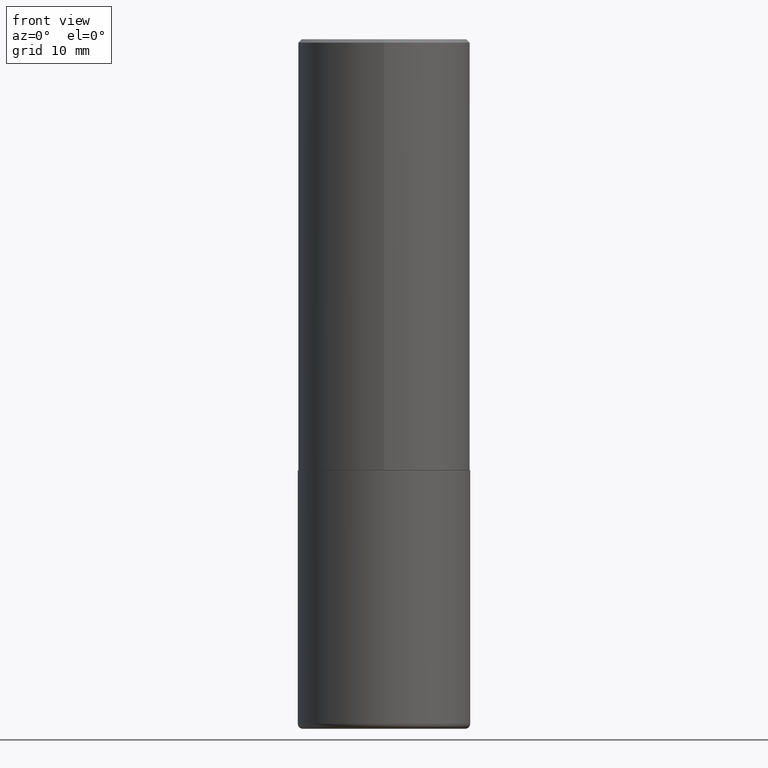
[diagram: clean part render]
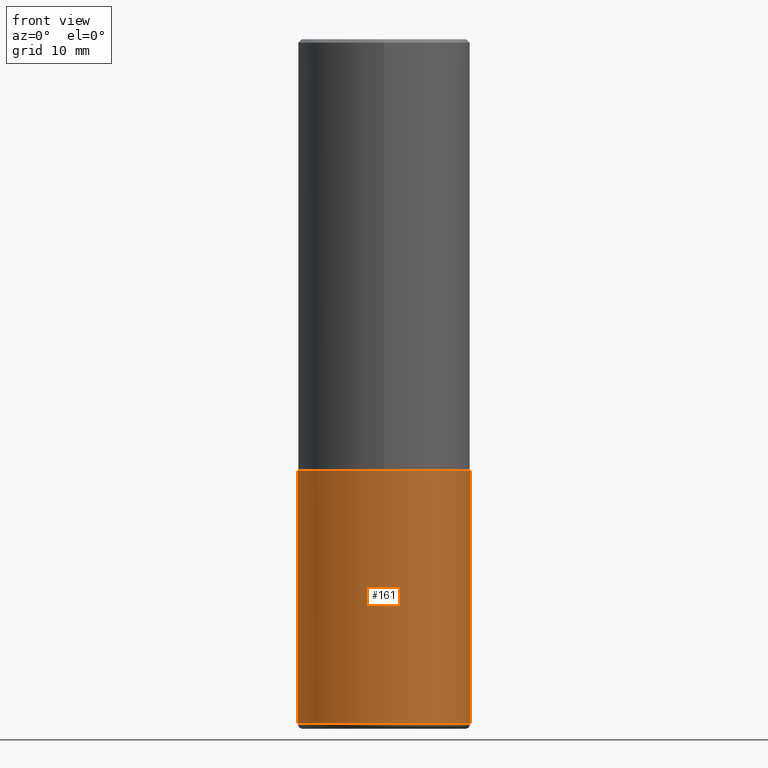
[diagram: same view with one face highlighted and labeled with its STEP entity id]
A machine part, front view. The second image highlights one B-rep face of the part: STEP entity #161.
In plain terms, the highlighted cylindrical surface (partial cylindrical patch) has radius 12.7 mm, axis along (-0, 0, 1).
Its self-contained STEP definition (entity closure, byte-faithful):
#6 = CARTESIAN_POINT ( 'NONE',  ( -0.4999999999999999445, -1.030846723640678645E-14, -3.970000000000000195 ) ) ;
#36 = EDGE_CURVE ( 'NONE', #320, #407, #138, .T. ) ;
#40 = CARTESIAN_POINT ( 'NONE',  ( 6.113672015462842613E-29, -8.728703347107864943E-15, -2.500000000000000000 ) ) ;
#47 = CARTESIAN_POINT ( 'NONE',  ( -0.5000000000000000000, 3.552713678800500929E-15, -2.459467545127452891E-29 ) ) ;
#50 = AXIS2_PLACEMENT_3D ( 'NONE', #78, #268, #394 ) ;
#51 = ORIENTED_EDGE ( 'NONE', *, *, #66, .T. ) ;
#58 = ORIENTED_EDGE ( 'NONE', *, *, #317, .F. ) ;
#66 = EDGE_CURVE ( 'NONE', #320, #156, #194, .T. ) ;
#67 = VECTOR ( 'NONE', #347, 39.37007874015748143 ) ;
#78 = CARTESIAN_POINT ( 'NONE',  ( 0.000000000000000000, 0.000000000000000000, 0.000000000000000000 ) ) ;
#107 = DIRECTION ( 'NONE',  ( -2.445468806185136597E-29, 3.491481338843145583E-15, 1.000000000000000000 ) ) ;
#134 = DIRECTION ( 'NONE',  ( 1.000000000000000000, -6.982962677686267499E-15, 0.000000000000000000 ) ) ;
#138 = LINE ( 'NONE', #47, #348 ) ;
#146 = CARTESIAN_POINT ( 'NONE',  ( 0.5000000000000000000, -1.222018468595099830E-14, -2.500000000000000000 ) ) ;
#151 = CARTESIAN_POINT ( 'NONE',  ( -0.5000000000000000000, -7.742228452357075234E-15, -2.500000000000000000 ) ) ;
#156 = VERTEX_POINT ( 'NONE', #327 ) ;
#161 = ADVANCED_FACE ( 'NONE', ( #204 ), #201, .T. ) ;
#165 = DIRECTION ( 'NONE',  ( 1.000000000000000000, -6.982962677686269077E-15, 0.000000000000000000 ) ) ;
#166 = DIRECTION ( 'NONE',  ( -2.445468806185136877E-29, 3.491481338843145188E-15, 1.000000000000000000 ) ) ;
#184 = AXIS2_PLACEMENT_3D ( 'NONE', #366, #396, #134 ) ;
#190 = CIRCLE ( 'NONE', #281, 0.5000000000000000000 ) ;
#194 = CIRCLE ( 'NONE', #184, 0.4999999999999999445 ) ;
#201 = CYLINDRICAL_SURFACE ( 'NONE', #50, 0.5000000000000000000 ) ;
#204 = FACE_OUTER_BOUND ( 'NONE', #212, .T. ) ;
#205 = ORIENTED_EDGE ( 'NONE', *, *, #36, .F. ) ;
#212 = EDGE_LOOP ( 'NONE', ( #205, #51, #283, #58 ) ) ;
#268 = DIRECTION ( 'NONE',  ( -2.445468806185136597E-29, 3.491481338843145583E-15, 1.000000000000000000 ) ) ;
#274 = CARTESIAN_POINT ( 'NONE',  ( 0.5000000000000000000, -3.491481338843133355E-15, 2.438088387897967896E-29 ) ) ;
#281 = AXIS2_PLACEMENT_3D ( 'NONE', #40, #107, #165 ) ;
#283 = ORIENTED_EDGE ( 'NONE', *, *, #343, .T. ) ;
#317 = EDGE_CURVE ( 'NONE', #407, #345, #190, .T. ) ;
#320 = VERTEX_POINT ( 'NONE', #6 ) ;
#327 = CARTESIAN_POINT ( 'NONE',  ( 0.4999999999999999445, -1.735266225405042074E-14, -3.970000000000000195 ) ) ;
#343 = EDGE_CURVE ( 'NONE', #156, #345, #370, .T. ) ;
#345 = VERTEX_POINT ( 'NONE', #146 ) ;
#347 = DIRECTION ( 'NONE',  ( -2.445468806185136877E-29, 3.491481338843145188E-15, 1.000000000000000000 ) ) ;
#348 = VECTOR ( 'NONE', #166, 39.37007874015748143 ) ;
#366 = CARTESIAN_POINT ( 'NONE',  ( 9.708511160554992872E-29, -1.386118091520728738E-14, -3.970000000000000195 ) ) ;
#370 = LINE ( 'NONE', #274, #67 ) ;
#394 = DIRECTION ( 'NONE',  ( 1.000000000000000000, -6.982962677686266711E-15, 4.876176775795935793E-29 ) ) ;
#396 = DIRECTION ( 'NONE',  ( -2.445468806185136597E-29, 3.491481338843145583E-15, 1.000000000000000000 ) ) ;
#407 = VERTEX_POINT ( 'NONE', #151 ) ;